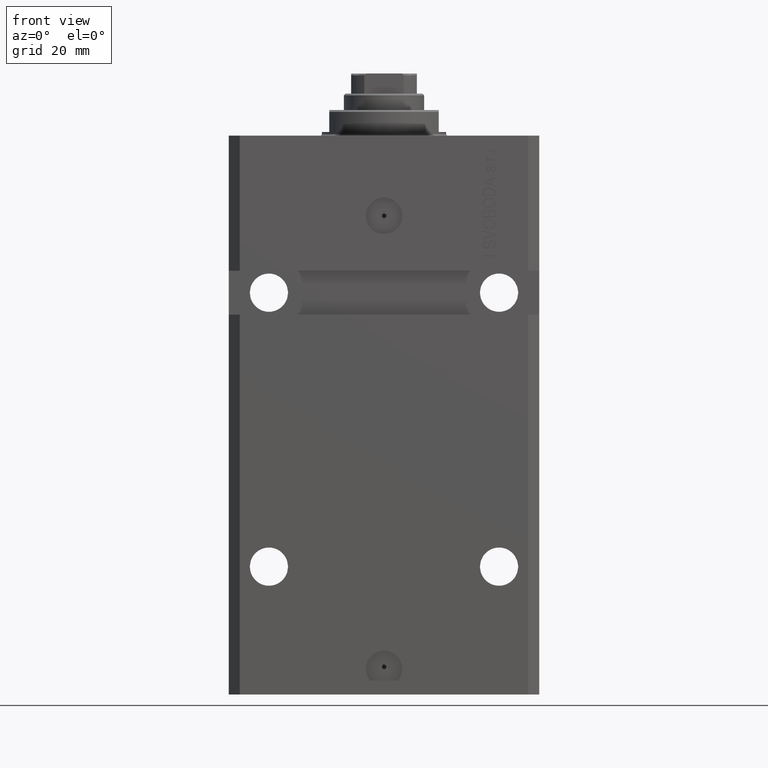
[diagram: clean part render]
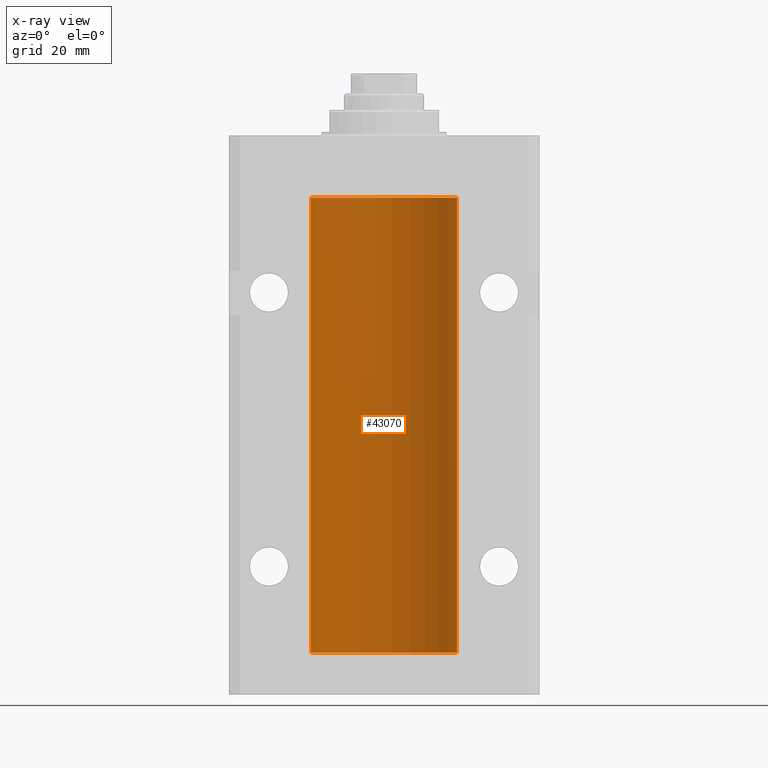
[diagram: x-ray — body ghosted, one internal face saturated and labeled with its STEP entity id]
A machine part, front view, then the same camera in x-ray: the body is ghosted and one INTERNAL B-rep face — a face not visible from any outside direction — is saturated and labeled: STEP entity #43070.
In plain terms, the highlighted cylindrical surface (partial cylindrical patch) has radius 20 mm, axis along (0, 0, 1).
Its self-contained STEP definition (entity closure, byte-faithful):
#273 = CARTESIAN_POINT ( 'NONE',  ( -20.00000000000000000, 2.449293598294706513E-15, -17.00000000000000000 ) ) ;
#461 = CIRCLE ( 'NONE', #7679, 20.00000000000000000 ) ;
#861 = VERTEX_POINT ( 'NONE', #17522 ) ;
#883 = EDGE_CURVE ( 'NONE', #38625, #22793, #36277, .T. ) ;
#899 = DIRECTION ( 'NONE',  ( -0.000000000000000000, -0.000000000000000000, 1.000000000000000000 ) ) ;
#930 = DIRECTION ( 'NONE',  ( 0.000000000000000000, 0.000000000000000000, 1.000000000000000000 ) ) ;
#3023 = CARTESIAN_POINT ( 'NONE',  ( -19.99766197842594195, 0.3150331617867615508, -138.4540207010250299 ) ) ;
#3032 = CARTESIAN_POINT ( 'NONE',  ( -19.99638934703457593, 0.3843678041337688644, -23.50046362978100944 ) ) ;
#3533 = DIRECTION ( 'NONE',  ( 0.000000000000000000, 0.000000000000000000, 1.000000000000000000 ) ) ;
#5441 = ORIENTED_EDGE ( 'NONE', *, *, #28816, .F. ) ;
#6011 = CARTESIAN_POINT ( 'NONE',  ( -19.99023380173166231, 0.6249420416828387337, -138.8367079305639606 ) ) ;
#6900 = CARTESIAN_POINT ( 'NONE',  ( -19.99999999999999645, 0.1631688615953307553, -139.6249999999998010 ) ) ;
#7679 = AXIS2_PLACEMENT_3D ( 'NONE', #28288, #3533, #9944 ) ;
#8244 = DIRECTION ( 'NONE',  ( 1.000000000000000000, 0.000000000000000000, 0.000000000000000000 ) ) ;
#8356 = B_SPLINE_CURVE_WITH_KNOTS ( 'NONE', 3,
 ( #27099, #28011, #9896, #27328, #3032, #9445, #20661, #41106, #9673, #13347, #37674, #37890 ),
 .UNSPECIFIED., .F., .F.,
 ( 4, 2, 2, 2, 2, 4 ),
 ( 5.848927291235706941E-19, 0.0002442693137305304075, 0.0004885386274610601645, 0.0009770772549221123059, 0.001465615882383164339, 0.001954154509844215938 ),
 .UNSPECIFIED. ) ;
#8873 = DIRECTION ( 'NONE',  ( 1.000000000000000000, 0.000000000000000000, 0.000000000000000000 ) ) ;
#9445 = CARTESIAN_POINT ( 'NONE',  ( -19.99256581701871482, 0.5573276956902001311, -23.67348565770948809 ) ) ;
#9665 = CARTESIAN_POINT ( 'NONE',  ( -19.99947377218718358, 0.1636439183262808073, -138.3912636400466170 ) ) ;
#9673 = CARTESIAN_POINT ( 'NONE',  ( -19.99253506710754991, 0.5587120480776751608, -24.32511620830248589 ) ) ;
#9896 = CARTESIAN_POINT ( 'NONE',  ( -19.99947377218718714, 0.1636439183262877461, -23.39126364004656011 ) ) ;
#9944 = DIRECTION ( 'NONE',  ( 1.000000000000000000, 0.000000000000000000, 0.000000000000000000 ) ) ;
#10298 = EDGE_LOOP ( 'NONE', ( #33314, #29497, #14122, #14746, #5441, #44084, #22290, #10393 ) ) ;
#10339 = CARTESIAN_POINT ( 'NONE',  ( -19.99023018003212471, 0.6250578794725458742, -139.1628480970496753 ) ) ;
#10393 = ORIENTED_EDGE ( 'NONE', *, *, #33174, .T. ) ;
#10712 = VERTEX_POINT ( 'NONE', #11011 ) ;
#11011 = CARTESIAN_POINT ( 'NONE',  ( -20.00000000000000000, -2.867584836844214272E-15, -23.37500000000000000 ) ) ;
#12100 = VECTOR ( 'NONE', #22542, 1000.000000000000000 ) ;
#13119 = CARTESIAN_POINT ( 'NONE',  ( -19.99638934703457238, 0.3843678041337506568, -138.5004636297809952 ) ) ;
#13347 = CARTESIAN_POINT ( 'NONE',  ( -19.99769349528941120, 0.3253804398728645242, -24.55855820727680339 ) ) ;
#14116 = LINE ( 'NONE', #14572, #32107 ) ;
#14122 = ORIENTED_EDGE ( 'NONE', *, *, #883, .T. ) ;
#14572 = CARTESIAN_POINT ( 'NONE',  ( -20.00000000000000000, 2.449293598294706513E-15, -141.5999999999999943 ) ) ;
#14746 = ORIENTED_EDGE ( 'NONE', *, *, #30274, .T. ) ;
#16490 = VERTEX_POINT ( 'NONE', #30729 ) ;
#17490 = EDGE_CURVE ( 'NONE', #38625, #21172, #21324, .T. ) ;
#17522 = CARTESIAN_POINT ( 'NONE',  ( -20.00000000000010303, 3.580159282543646009E-13, -24.62500000000332889 ) ) ;
#18527 = CARTESIAN_POINT ( 'NONE',  ( -20.00000000000000000, 2.449293598294706513E-15, -141.5999999999999943 ) ) ;
#19487 = DIRECTION ( 'NONE',  ( -0.000000000000000000, -0.000000000000000000, 1.000000000000000000 ) ) ;
#20661 = CARTESIAN_POINT ( 'NONE',  ( -19.99023380173166231, 0.6249420416828462832, -23.83670793056396064 ) ) ;
#21172 = VERTEX_POINT ( 'NONE', #32259 ) ;
#21324 = CIRCLE ( 'NONE', #22794, 20.00000000000000000 ) ;
#22184 = LINE ( 'NONE', #18527, #30371 ) ;
#22218 = AXIS2_PLACEMENT_3D ( 'NONE', #40300, #26523, #8873 ) ;
#22290 = ORIENTED_EDGE ( 'NONE', *, *, #31057, .F. ) ;
#22542 = DIRECTION ( 'NONE',  ( -0.000000000000000000, -0.000000000000000000, 1.000000000000000000 ) ) ;
#22793 = VERTEX_POINT ( 'NONE', #31427 ) ;
#22794 = AXIS2_PLACEMENT_3D ( 'NONE', #31893, #930, #8244 ) ;
#23421 = CARTESIAN_POINT ( 'NONE',  ( -19.99256581701871482, 0.5573276956901845880, -138.6734856577095059 ) ) ;
#24098 = CARTESIAN_POINT ( 'NONE',  ( -20.00000000000010303, 3.580159249456421507E-13, -139.6250000000033253 ) ) ;
#25552 = VECTOR ( 'NONE', #19487, 1000.000000000000000 ) ;
#25903 = B_SPLINE_CURVE_WITH_KNOTS ( 'NONE', 3,
 ( #40875, #30542, #9665, #3023, #13119, #23421, #6011, #10339, #41543, #27766, #6900, #30759 ),
 .UNSPECIFIED., .F., .F.,
 ( 4, 2, 2, 2, 2, 4 ),
 ( 5.247116368830962784E-19, 0.0002442693137305545852, 0.0004885386274611086283, 0.0009770772549221576255, 0.001465615882383206840, 0.001954154509844256270 ),
 .UNSPECIFIED. ) ;
#26000 = LINE ( 'NONE', #39999, #12100 ) ;
#26523 = DIRECTION ( 'NONE',  ( -0.000000000000000000, -0.000000000000000000, 1.000000000000000000 ) ) ;
#27099 = CARTESIAN_POINT ( 'NONE',  ( -20.00000000000000000, -2.867584836844214272E-15, -23.37500000000000000 ) ) ;
#27328 = CARTESIAN_POINT ( 'NONE',  ( -19.99766197842594906, 0.3150331617867667688, -23.45402070102505476 ) ) ;
#27766 = CARTESIAN_POINT ( 'NONE',  ( -19.99769349528941120, 0.3253804398728610270, -139.5585582072767750 ) ) ;
#28011 = CARTESIAN_POINT ( 'NONE',  ( -19.99999999999999645, 0.08259581631026780002, -23.37500000000000000 ) ) ;
#28288 = CARTESIAN_POINT ( 'NONE',  ( 0.000000000000000000, 0.000000000000000000, -17.00000000000000000 ) ) ;
#28816 = EDGE_CURVE ( 'NONE', #10712, #29897, #26000, .T. ) ;
#29497 = ORIENTED_EDGE ( 'NONE', *, *, #17490, .F. ) ;
#29746 = CYLINDRICAL_SURFACE ( 'NONE', #22218, 20.00000000000000000 ) ;
#29897 = VERTEX_POINT ( 'NONE', #273 ) ;
#30274 = EDGE_CURVE ( 'NONE', #22793, #29897, #461, .T. ) ;
#30371 = VECTOR ( 'NONE', #899, 1000.000000000000000 ) ;
#30542 = CARTESIAN_POINT ( 'NONE',  ( -20.00000000000000000, 0.08259581631025542103, -138.3749999999999716 ) ) ;
#30648 = FACE_OUTER_BOUND ( 'NONE', #10298, .T. ) ;
#30729 = CARTESIAN_POINT ( 'NONE',  ( -20.00000000000000000, -1.756252550797319649E-14, -138.3749999999999716 ) ) ;
#30759 = CARTESIAN_POINT ( 'NONE',  ( -20.00000000000010303, 3.580159249456421507E-13, -139.6250000000033253 ) ) ;
#31057 = EDGE_CURVE ( 'NONE', #16490, #861, #22184, .T. ) ;
#31427 = CARTESIAN_POINT ( 'NONE',  ( 20.00000000000000000, 0.000000000000000000, -17.00000000000000000 ) ) ;
#31893 = CARTESIAN_POINT ( 'NONE',  ( 0.000000000000000000, 0.000000000000000000, -141.5999999999999943 ) ) ;
#32107 = VECTOR ( 'NONE', #42556, 1000.000000000000000 ) ;
#32259 = CARTESIAN_POINT ( 'NONE',  ( -20.00000000000000000, 2.449293598294706513E-15, -141.5999999999999943 ) ) ;
#32831 = CARTESIAN_POINT ( 'NONE',  ( 20.00000000000000000, 0.000000000000000000, -141.5999999999999943 ) ) ;
#33174 = EDGE_CURVE ( 'NONE', #16490, #34119, #25903, .T. ) ;
#33314 = ORIENTED_EDGE ( 'NONE', *, *, #39603, .F. ) ;
#34077 = EDGE_CURVE ( 'NONE', #10712, #861, #8356, .T. ) ;
#34119 = VERTEX_POINT ( 'NONE', #24098 ) ;
#36277 = LINE ( 'NONE', #32831, #25552 ) ;
#37674 = CARTESIAN_POINT ( 'NONE',  ( -20.00000000000000000, 0.1631688615953320320, -24.62499999999985434 ) ) ;
#37890 = CARTESIAN_POINT ( 'NONE',  ( -20.00000000000010303, 3.580159282543646009E-13, -24.62500000000332889 ) ) ;
#38625 = VERTEX_POINT ( 'NONE', #41459 ) ;
#39603 = EDGE_CURVE ( 'NONE', #21172, #34119, #14116, .T. ) ;
#39999 = CARTESIAN_POINT ( 'NONE',  ( -20.00000000000000000, 2.449293598294706513E-15, -141.5999999999999943 ) ) ;
#40300 = CARTESIAN_POINT ( 'NONE',  ( 0.000000000000000000, 0.000000000000000000, -141.5999999999999943 ) ) ;
#40875 = CARTESIAN_POINT ( 'NONE',  ( -20.00000000000000000, -1.756252550797319649E-14, -138.3749999999999716 ) ) ;
#41106 = CARTESIAN_POINT ( 'NONE',  ( -19.99023018003212471, 0.6250578794725500931, -24.16284809704970371 ) ) ;
#41459 = CARTESIAN_POINT ( 'NONE',  ( 20.00000000000000000, 0.000000000000000000, -141.5999999999999943 ) ) ;
#41543 = CARTESIAN_POINT ( 'NONE',  ( -19.99253506710755346, 0.5587120480776690545, -139.3251162083025463 ) ) ;
#42556 = DIRECTION ( 'NONE',  ( -0.000000000000000000, -0.000000000000000000, 1.000000000000000000 ) ) ;
#43070 = ADVANCED_FACE ( 'NONE', ( #30648 ), #29746, .F. ) ;
#44084 = ORIENTED_EDGE ( 'NONE', *, *, #34077, .T. ) ;